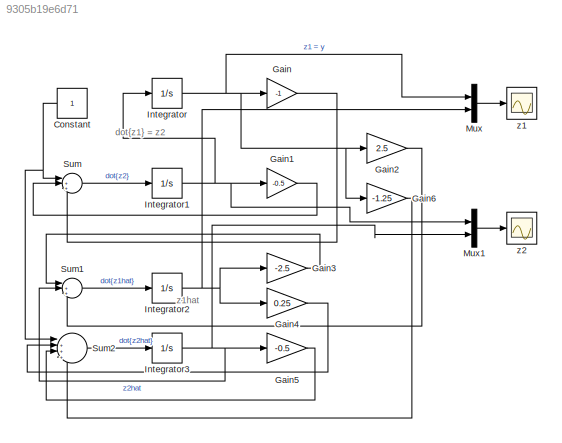
MODEL slx_9305b19e6d71
KIND model
CONFIG AbsTol = auto
CONFIG EnableMultiTasking = off
CONFIG FixedStep = auto
CONFIG MaxStep = auto
CONFIG MinStep = auto
CONFIG RelTol = 1e-3
CONFIG SampleTimeConstraint = Unconstrained
CONFIG SolverName = VariableStepAuto
CONFIG StartTime = 0.0
CONFIG StopTime = 20.0
BLOCK [Constant] Constant
BLOCK [Gain] Gain
  Gain = -1
BLOCK [Gain] Gain1
  Gain = -0.5
BLOCK [Gain] Gain2
  Gain = 2.5
BLOCK [Gain] Gain3
  Gain = -2.5
BLOCK [Gain] Gain4
  Gain = 0.25
BLOCK [Gain] Gain5
  Gain = -0.5
BLOCK [Gain] Gain6
  Gain = -1.25
BLOCK [Integrator] Integrator
BLOCK [Integrator] Integrator1
BLOCK [Integrator] Integrator2
BLOCK [Integrator] Integrator3
  InitialCondition = 1
BLOCK [Mux] Mux
  DisplayOption = bar
  Inputs = 2
BLOCK [Mux] Mux1
  DisplayOption = bar
  Inputs = 2
BLOCK [Sum] Sum
  Inputs = |+++
BLOCK [Sum] Sum1
  Inputs = |+++
BLOCK [Sum] Sum2
  Inputs = |++++
BLOCK [Scope] z1
  Floating = off
  NumInputPorts = 1
  ScopeSpecificationString = Simulink.scopes.TimeScopeBlockCfg('CurrentConfiguration', extmgr.ConfigurationSet(extmgr.Configuration('Core','General UI',true),extmgr.Configuration('Core','Source UI',true),extmgr.Configuration('Sources','WiredSimulink',true),extmgr.Configuration('Visuals','Time Domain',true,'SerializedDisplays',{struct('MinYLimReal','-0.197','MaxYLimReal','1.77302','YLabelReal','','MinYLimMag','0.00000','MaxYLi...<+1365ch>
BLOCK [Scope] z2
  Floating = off
  NumInputPorts = 1
  ScopeSpecificationString = Simulink.scopes.TimeScopeBlockCfg('CurrentConfiguration', extmgr.ConfigurationSet(extmgr.Configuration('Core','General UI',true),extmgr.Configuration('Core','Source UI',true),extmgr.Configuration('Sources','WiredSimulink',true,'DataLoggingVariableName','ScopeData1'),extmgr.Configuration('Visuals','Time Domain',true,'SerializedDisplays',{struct('MinYLimReal','-0.51864','MaxYLimReal','1.51564','YLab...<+1378ch>
ANNOTATION (root): z1hat
ANNOTATION (root): dot{z1} = z2
NET Constant:1 -> Sum2:1, Sum:1
LINE Gain1:1 -> Sum:2
LINE Gain2:1 -> Sum1:3
LINE Gain3:1 -> Sum1:1
LINE Gain4:1 -> Sum2:2
LINE Gain5:1 -> Sum2:3
LINE Gain6:1 -> Sum2:4
LINE Gain:1 -> Sum:3
NET Integrator1:1 -> Gain1:1, Integrator:1, Mux1:1
NET Integrator2:1 -> Gain3:1, Gain4:1, Mux:2
NET Integrator3:1 -> Gain5:1, Mux1:2, Sum1:2
NET Integrator:1 -> Gain2:1, Gain6:1, Gain:1, Mux:1
LINE Mux1:1 -> z2:1
LINE Mux:1 -> z1:1
LINE Sum1:1 -> Integrator2:1
LINE Sum2:1 -> Integrator3:1
LINE Sum:1 -> Integrator1:1
note: NET lines group one-source signal fan-out (src -> all destinations, sorted); 1:1 wires keep LINE
